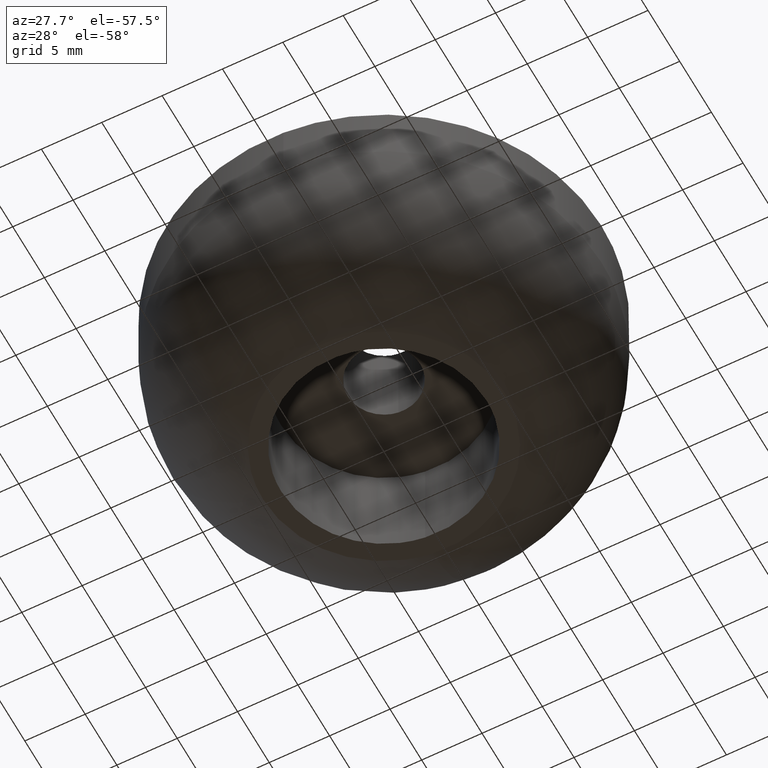
[diagram: clean part render]
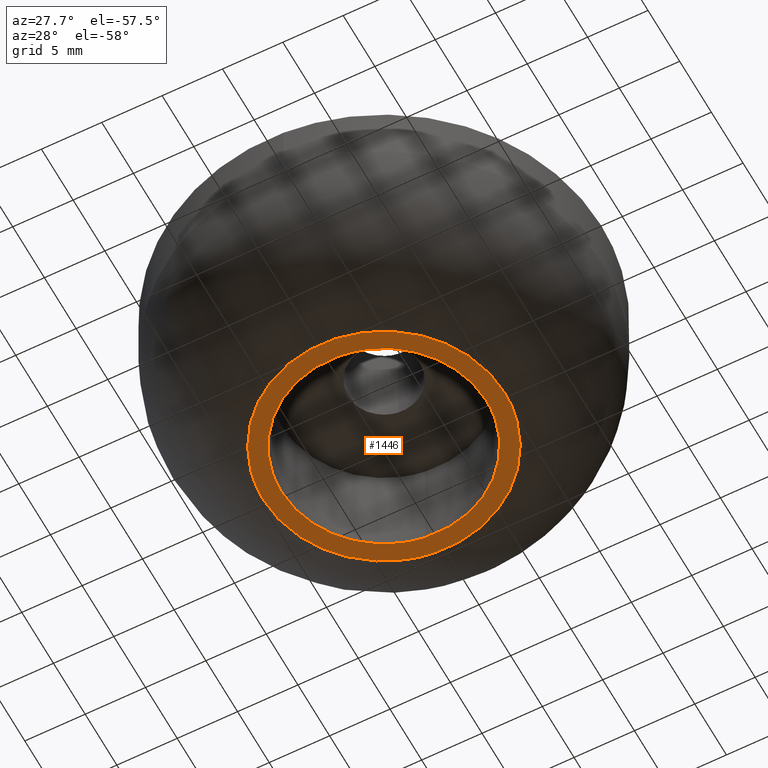
[diagram: same view with one face highlighted and labeled with its STEP entity id]
A machine part, auxiliary view. The second image highlights one B-rep face of the part: STEP entity #1446.
In plain terms, the highlighted face is a freeform B-spline surface patch.
Its self-contained STEP definition (entity closure, byte-faithful):
#1088=CARTESIAN_POINT('',(-1.003279770258291,8.440582308257097,-5.264300E-014));
#1089=VERTEX_POINT('',#1088);
#1090=CARTESIAN_POINT('',(8.500000000000000,0.0,0.0));
#1091=VERTEX_POINT('',#1090);
#1092=CARTESIAN_POINT('',(-1.003279770258291,8.440582308257097,-5.264300E-014));
#1093=CARTESIAN_POINT('',(-0.503399345549216,8.499999999999998,0.0));
#1094=CARTESIAN_POINT('',(0.0,8.500000000000000,0.0));
#1095=CARTESIAN_POINT('',(8.500000000000002,8.500000000000002,0.0));
#1096=CARTESIAN_POINT('',(8.500000000000000,0.0,0.0));
#1104=(BOUNDED_CURVE()B_SPLINE_CURVE(2,(#1092,#1093,#1094,#1095,#1096),.UNSPECIFIED.,.F.,.U.)B_SPLINE_CURVE_WITH_KNOTS((3,2,3),(0.229562698256975,0.250000000000000,0.500000000000000),.UNSPECIFIED.)CURVE()GEOMETRIC_REPRESENTATION_ITEM()RATIONAL_B_SPLINE_CURVE((0.956027194690565,0.976056211634495,1.0,0.707106781186548,1.0))REPRESENTATION_ITEM(''));
#1105=EDGE_CURVE('',#1089,#1091,#1104,.T.);
#1107=CARTESIAN_POINT('',(0.518900572460381,-8.484146521351185,-5.054290E-014));
#1108=VERTEX_POINT('',#1107);
#1109=CARTESIAN_POINT('',(8.500000000000000,0.0,0.0));
#1110=CARTESIAN_POINT('',(8.500000000000000,-7.996012912234597,0.0));
#1111=CARTESIAN_POINT('',(0.518900572460381,-8.484146521351185,-5.054290E-014));
#1119=(BOUNDED_CURVE()B_SPLINE_CURVE(2,(#1109,#1110,#1111),.UNSPECIFIED.,.F.,.U.)B_SPLINE_CURVE_WITH_KNOTS((3,3),(0.500000000000000,0.739333206568988),.UNSPECIFIED.)CURVE()GEOMETRIC_REPRESENTATION_ITEM()RATIONAL_B_SPLINE_CURVE((1.0,0.719603707036256,0.976072565313075))REPRESENTATION_ITEM(''));
#1120=EDGE_CURVE('',#1091,#1108,#1119,.T.);
#1187=CARTESIAN_POINT('',(-8.500000000000000,0.0,0.0));
#1188=VERTEX_POINT('',#1187);
#1189=CARTESIAN_POINT('',(-8.500000000000000,0.0,0.0));
#1190=CARTESIAN_POINT('',(-8.500000000000002,7.549493580603291,0.0));
#1191=CARTESIAN_POINT('',(-1.003279770258291,8.440582308257097,-5.264300E-014));
#1199=(BOUNDED_CURVE()B_SPLINE_CURVE(2,(#1189,#1190,#1191),.UNSPECIFIED.,.F.,.U.)B_SPLINE_CURVE_WITH_KNOTS((3,3),(0.0,0.229562698256975),.UNSPECIFIED.)CURVE()GEOMETRIC_REPRESENTATION_ITEM()RATIONAL_B_SPLINE_CURVE((1.0,0.731050569552053,0.956027194690565))REPRESENTATION_ITEM(''));
#1200=EDGE_CURVE('',#1188,#1089,#1199,.T.);
#1234=CARTESIAN_POINT('',(0.518900572460381,-8.484146521351185,-5.054290E-014));
#1235=CARTESIAN_POINT('',(0.259692464403244,-8.500000000000000,0.0));
#1236=CARTESIAN_POINT('',(0.0,-8.500000000000000,0.0));
#1237=CARTESIAN_POINT('',(-8.500000000000002,-8.500000000000002,0.0));
#1238=CARTESIAN_POINT('',(-8.500000000000000,0.0,0.0));
#1246=(BOUNDED_CURVE()B_SPLINE_CURVE(2,(#1234,#1235,#1236,#1237,#1238),.UNSPECIFIED.,.F.,.U.)B_SPLINE_CURVE_WITH_KNOTS((3,2,3),(0.739333206568988,0.750000000000000,1.0),.UNSPECIFIED.)CURVE()GEOMETRIC_REPRESENTATION_ITEM()RATIONAL_B_SPLINE_CURVE((0.976072565313075,0.987503074150291,1.0,0.707106781186548,1.0))REPRESENTATION_ITEM(''));
#1247=EDGE_CURVE('',#1108,#1188,#1246,.T.);
#1305=CARTESIAN_POINT('',(-1.154628646026271,9.933093624676276,-0.000010077727264));
#1306=VERTEX_POINT('',#1305);
#1307=CARTESIAN_POINT('',(10.000000010882360,0.0,4.534336E-009));
#1308=VERTEX_POINT('',#1307);
#1309=CARTESIAN_POINT('',(-1.154628646026271,9.933093624676276,-0.000010077727264));
#1310=CARTESIAN_POINT('',(-0.579250087576167,9.999976595056273,-0.000009817695461));
#1311=CARTESIAN_POINT('',(0.000002640949877,9.999977291194542,-0.000009525686543));
#1312=CARTESIAN_POINT('',(10.000001254868415,9.999989309060599,-0.000004484555743));
#1313=CARTESIAN_POINT('',(10.000000010882360,0.0,4.534336E-009));
#1321=(BOUNDED_CURVE()B_SPLINE_CURVE(2,(#1309,#1310,#1311,#1312,#1313),.UNSPECIFIED.,.F.,.U.)B_SPLINE_CURVE_WITH_KNOTS((3,2,3),(0.230000184847062,0.250000000000000,0.500000000000000),.UNSPECIFIED.)CURVE()GEOMETRIC_REPRESENTATION_ITEM()RATIONAL_B_SPLINE_CURVE((0.956886482014811,0.976568759056728,1.0,0.707106781186547,1.0))REPRESENTATION_ITEM(''));
#1322=EDGE_CURVE('',#1306,#1308,#1321,.T.);
#1343=CARTESIAN_POINT('',(-10.000002416471730,0.0,0.000001006863800));
#1344=VERTEX_POINT('',#1343);
#1360=CARTESIAN_POINT('',(10.000000010882360,0.0,4.534336E-009));
#1361=CARTESIAN_POINT('',(10.000000010882360,-10.000000010882360,4.534336E-009));
#1362=CARTESIAN_POINT('',(-0.000001202794687,-10.000000010882360,0.000000505699068));
#1363=CARTESIAN_POINT('',(-10.000002416471734,-10.000000010882360,0.000001006863800));
#1364=CARTESIAN_POINT('',(-10.000002416471730,0.0,0.000001006863800));
#1372=(BOUNDED_CURVE()B_SPLINE_CURVE(2,(#1360,#1361,#1362,#1363,#1364),.UNSPECIFIED.,.F.,.U.)B_SPLINE_CURVE_WITH_KNOTS((3,2,3),(0.500000000000000,0.750000000000000,1.0),.UNSPECIFIED.)CURVE()GEOMETRIC_REPRESENTATION_ITEM()RATIONAL_B_SPLINE_CURVE((1.0,0.707106781186547,1.0,0.707106781186547,1.0))REPRESENTATION_ITEM(''));
#1373=EDGE_CURVE('',#1308,#1344,#1372,.T.);
#1411=CARTESIAN_POINT('',(-10.000002416471730,0.0,0.000001006863800));
#1412=CARTESIAN_POINT('',(-9.999999816713226,8.904914796612673,-0.000004535431732));
#1413=CARTESIAN_POINT('',(-1.154628646026271,9.933093624676276,-0.000010077727264));
#1421=(BOUNDED_CURVE()B_SPLINE_CURVE(2,(#1411,#1412,#1413),.UNSPECIFIED.,.F.,.U.)B_SPLINE_CURVE_WITH_KNOTS((3,3),(0.0,0.230000184847062),.UNSPECIFIED.)CURVE()GEOMETRIC_REPRESENTATION_ITEM()RATIONAL_B_SPLINE_CURVE((1.0,0.730538022129819,0.956886482014811))REPRESENTATION_ITEM(''));
#1422=EDGE_CURVE('',#1344,#1306,#1421,.T.);
#1430=CARTESIAN_POINT('',(-10.999003062191321,-10.998996143886989,2.267168E-009));
#1431=CARTESIAN_POINT('',(10.999000656601950,-10.998996143886989,2.267168E-009));
#1432=CARTESIAN_POINT('',(-10.999003062191321,10.998920016968571,2.267168E-009));
#1433=CARTESIAN_POINT('',(10.999000656601950,10.998920016968571,2.267168E-009));
#1434=B_SPLINE_SURFACE_WITH_KNOTS('',1,1,((#1430,#1432),(#1431,#1433)),.UNSPECIFIED.,.F.,.F.,.U.,(2,2),(2,2),(0.0,21.998003718793271),(0.0,21.997916160855560),.UNSPECIFIED.);
#1435=ORIENTED_EDGE('',*,*,#1422,.T.);
#1436=ORIENTED_EDGE('',*,*,#1322,.T.);
#1437=ORIENTED_EDGE('',*,*,#1373,.T.);
#1438=EDGE_LOOP('',(#1435,#1436,#1437));
#1439=FACE_OUTER_BOUND('',#1438,.T.);
#1440=ORIENTED_EDGE('',*,*,#1120,.F.);
#1441=ORIENTED_EDGE('',*,*,#1105,.F.);
#1442=ORIENTED_EDGE('',*,*,#1200,.F.);
#1443=ORIENTED_EDGE('',*,*,#1247,.F.);
#1444=EDGE_LOOP('',(#1440,#1441,#1442,#1443));
#1445=FACE_BOUND('',#1444,.T.);
#1446=ADVANCED_FACE('',(#1439,#1445),#1434,.F.);